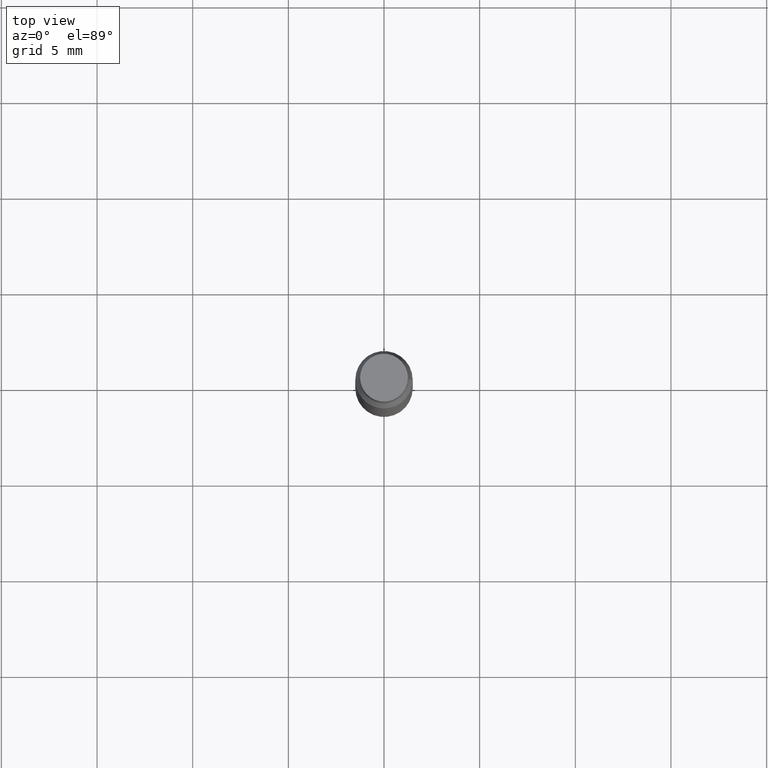
[diagram: clean part render]
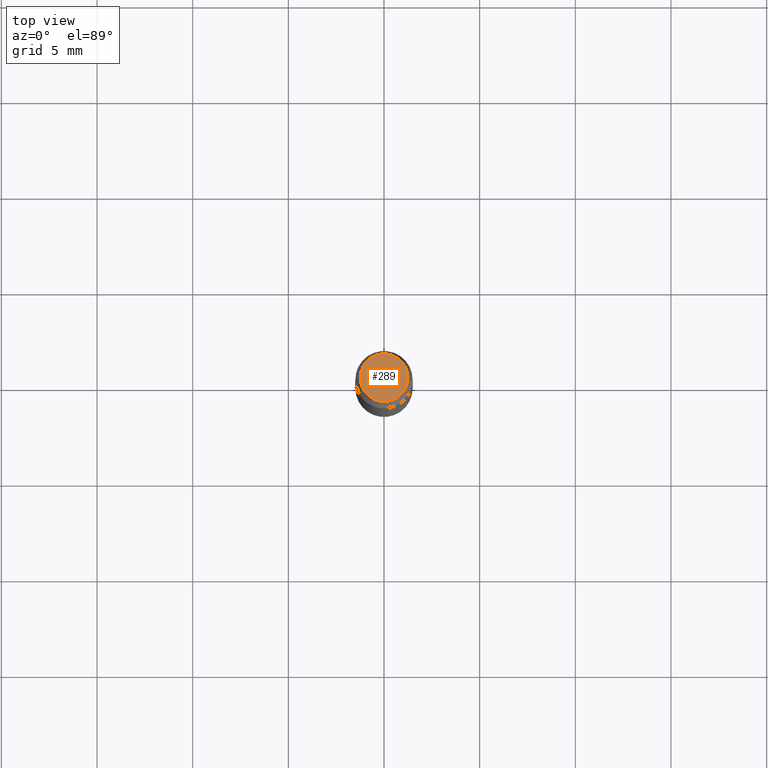
[diagram: same view with one face highlighted and labeled with its STEP entity id]
A machine part, top view. The second image highlights one B-rep face of the part: STEP entity #289.
In plain terms, the highlighted planar face has unit normal (-0, -0, -1).
Its self-contained STEP definition (entity closure, byte-faithful):
#16 = ORIENTED_EDGE ( 'NONE', *, *, #552, .T. ) ;
#40 = EDGE_LOOP ( 'NONE', ( #513, #16 ) ) ;
#42 = CIRCLE ( 'NONE', #503, 0.04920000000000000068 ) ;
#88 = VERTEX_POINT ( 'NONE', #764 ) ;
#114 = CARTESIAN_POINT ( 'NONE',  ( 3.658665880933582389E-29, 2.421857640538043390E-19, 0.000000000000000000 ) ) ;
#286 = DIRECTION ( 'NONE',  ( -2.438088387897959208E-29, -3.491805094961123683E-15, -1.000000000000000000 ) ) ;
#289 = ADVANCED_FACE ( 'NONE', ( #816 ), #732, .F. ) ;
#341 = DIRECTION ( 'NONE',  ( 1.000000000000000000, -6.982962677686266711E-15, 2.260776888683160490E-33 ) ) ;
#384 = CARTESIAN_POINT ( 'NONE',  ( -0.04920000000000000068, -5.989524344509276303E-18, 1.224930569750488453E-30 ) ) ;
#410 = CIRCLE ( 'NONE', #579, 0.04920000000000000068 ) ;
#413 = DIRECTION ( 'NONE',  ( 1.000000000000000000, -6.982962677686266711E-15, 2.260776888683160490E-33 ) ) ;
#421 = DIRECTION ( 'NONE',  ( 2.445468806185136597E-29, 3.491805094961124077E-15, 1.000000000000000000 ) ) ;
#486 = CARTESIAN_POINT ( 'NONE',  ( 3.658665880933582389E-29, 2.421857640538043390E-19, 0.000000000000000000 ) ) ;
#503 = AXIS2_PLACEMENT_3D ( 'NONE', #114, #421, #341 ) ;
#509 = EDGE_CURVE ( 'NONE', #88, #867, #410, .T. ) ;
#513 = ORIENTED_EDGE ( 'NONE', *, *, #509, .T. ) ;
#552 = EDGE_CURVE ( 'NONE', #867, #88, #42, .T. ) ;
#579 = AXIS2_PLACEMENT_3D ( 'NONE', #486, #789, #413 ) ;
#595 = AXIS2_PLACEMENT_3D ( 'NONE', #661, #286, #894 ) ;
#661 = CARTESIAN_POINT ( 'NONE',  ( 3.569033433238669537E-29, -1.281165808971637162E-16, 0.000000000000000000 ) ) ;
#732 = PLANE ( 'NONE',  #595 ) ;
#764 = CARTESIAN_POINT ( 'NONE',  ( 0.04920000000000000068, -3.433195779781105028E-16, 1.112302229232114997E-34 ) ) ;
#789 = DIRECTION ( 'NONE',  ( 2.445468806185136597E-29, 3.491805094961124077E-15, 1.000000000000000000 ) ) ;
#816 = FACE_OUTER_BOUND ( 'NONE', #40, .T. ) ;
#867 = VERTEX_POINT ( 'NONE', #384 ) ;
#894 = DIRECTION ( 'NONE',  ( 1.000000000000000000, -6.982962677686265922E-15, 2.260776888683160832E-33 ) ) ;